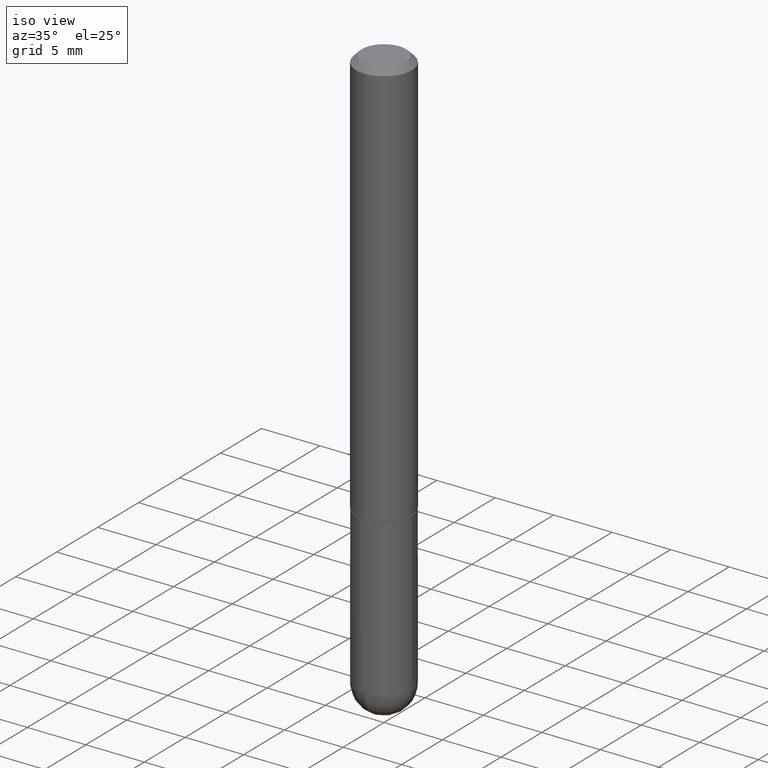
[diagram: clean part render]
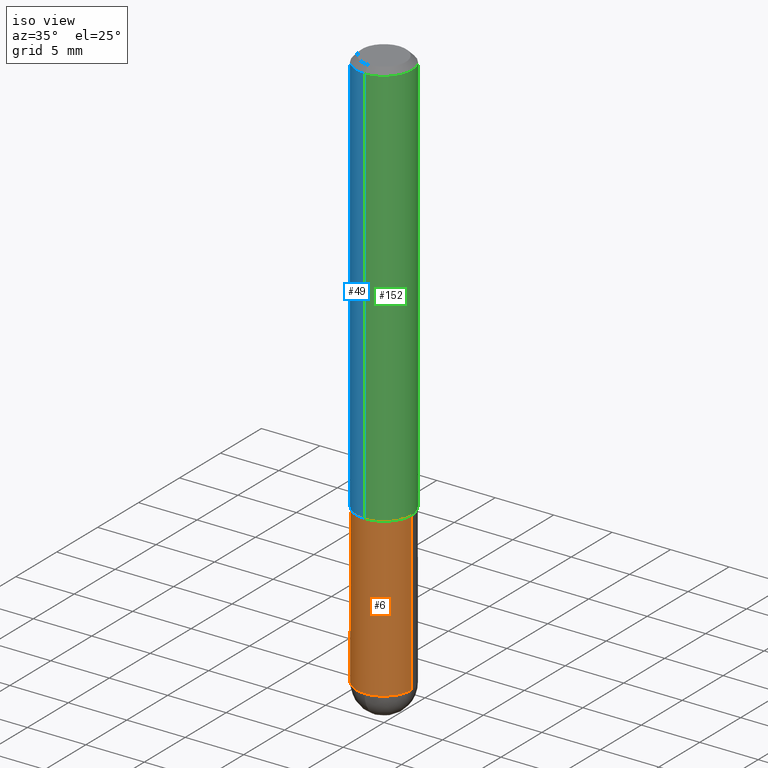
[diagram: same view with three faces highlighted in distinct colors, each labeled with its STEP entity id]
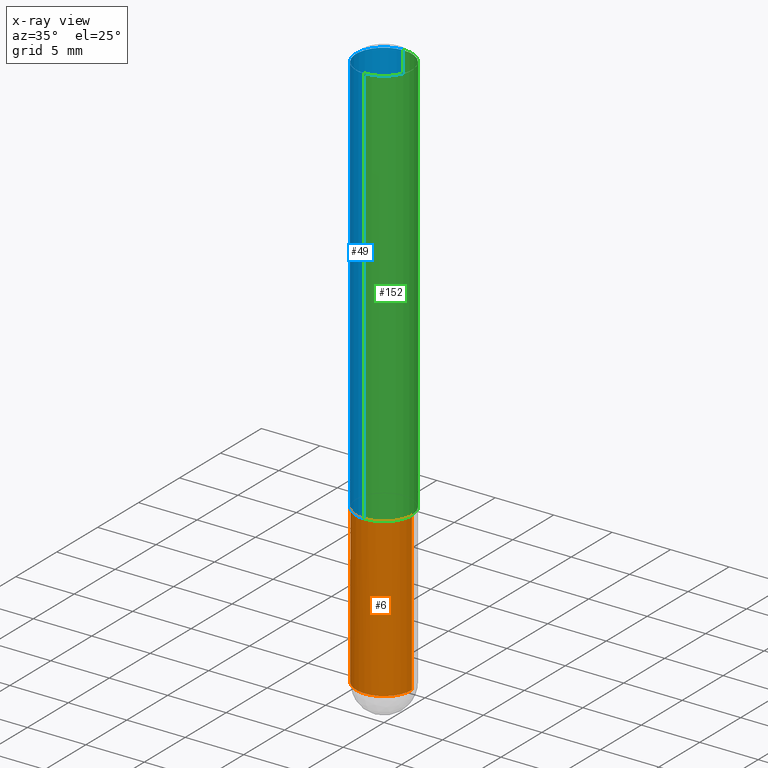
[diagram: x-ray of the same camera — body ghosted, the three highlighted faces saturated]
A machine part, iso view with three faces highlighted in distinct colors.
The next image is the same camera in x-ray (body ghosted, the three faces saturated) — at least one of them is partly hidden behind the body in this view.
Their STEP definitions:

[orange] entity #6 — the highlighted cylindrical surface (edge-blend (fillet) strip) has radius 2.3813 mm, axis along (-0, 0, 1).
#1 = VERTEX_POINT ( 'NONE', #338 ) ;
#2 = ORIENTED_EDGE ( 'NONE', *, *, #300, .F. ) ;
#6 = ADVANCED_FACE ( 'NONE', ( #319 ), #220, .T. ) ;
#13 = DIRECTION ( 'NONE',  ( -2.445468806185136597E-29, 3.491481338843145583E-15, 1.000000000000000000 ) ) ;
#22 = CARTESIAN_POINT ( 'NONE',  ( -6.661338147750496494E-16, -0.09375000000000702216, -1.906249999999999556 ) ) ;
#25 = VERTEX_POINT ( 'NONE', #22 ) ;
#39 = VECTOR ( 'NONE', #101, 39.37007874015748143 ) ;
#59 = CARTESIAN_POINT ( 'NONE',  ( 3.362519608504562260E-29, -4.800786840909324930E-15, -1.375000000000000000 ) ) ;
#63 = CARTESIAN_POINT ( 'NONE',  ( -0.09375000000000001388, -5.062077756764441261E-15, -1.375000000000000000 ) ) ;
#65 = CARTESIAN_POINT ( 'NONE',  ( 0.000000000000000000, 0.000000000000000000, 0.000000000000000000 ) ) ;
#67 = EDGE_CURVE ( 'NONE', #228, #163, #373, .T. ) ;
#83 = DIRECTION ( 'NONE',  ( 1.000000000000000000, -6.982962677686265922E-15, 4.876176775795935793E-29 ) ) ;
#84 = AXIS2_PLACEMENT_3D ( 'NONE', #59, #372, #211 ) ;
#87 = EDGE_LOOP ( 'NONE', ( #2, #351, #148, #108, #311 ) ) ;
#88 = CARTESIAN_POINT ( 'NONE',  ( 0.09375000000000001388, -6.546527510330875041E-16, 4.571415727308690506E-30 ) ) ;
#94 = CARTESIAN_POINT ( 'NONE',  ( 0.09375000000000001388, -6.382864322572621901E-15, -1.906250000000000000 ) ) ;
#98 = DIRECTION ( 'NONE',  ( 1.000000000000000000, -6.982962677686261189E-15, 0.000000000000000000 ) ) ;
#101 = DIRECTION ( 'NONE',  ( -2.445468806185136877E-29, 3.491481338843145188E-15, 1.000000000000000000 ) ) ;
#108 = ORIENTED_EDGE ( 'NONE', *, *, #114, .T. ) ;
#114 = EDGE_CURVE ( 'NONE', #245, #163, #404, .T. ) ;
#132 = AXIS2_PLACEMENT_3D ( 'NONE', #165, #362, #360 ) ;
#137 = AXIS2_PLACEMENT_3D ( 'NONE', #65, #354, #83 ) ;
#148 = ORIENTED_EDGE ( 'NONE', *, *, #385, .T. ) ;
#163 = VERTEX_POINT ( 'NONE', #276 ) ;
#165 = CARTESIAN_POINT ( 'NONE',  ( 4.661674911790416638E-29, -6.655636302169745441E-15, -1.906250000000000000 ) ) ;
#211 = DIRECTION ( 'NONE',  ( 1.000000000000000000, -6.982962677686261189E-15, 0.000000000000000000 ) ) ;
#213 = DIRECTION ( 'NONE',  ( -2.445468806185136877E-29, 3.491481338843145188E-15, 1.000000000000000000 ) ) ;
#220 = CYLINDRICAL_SURFACE ( 'NONE', #137, 0.09375000000000001388 ) ;
#228 = VERTEX_POINT ( 'NONE', #63 ) ;
#236 = CIRCLE ( 'NONE', #132, 0.09375000000000001388 ) ;
#245 = VERTEX_POINT ( 'NONE', #94 ) ;
#251 = EDGE_CURVE ( 'NONE', #1, #25, #236, .T. ) ;
#260 = CARTESIAN_POINT ( 'NONE',  ( -0.09375000000000001388, 6.661338147750940229E-16, -4.611501647113973995E-30 ) ) ;
#276 = CARTESIAN_POINT ( 'NONE',  ( 0.09375000000000001388, -5.455439591942412434E-15, -1.375000000000000000 ) ) ;
#300 = EDGE_CURVE ( 'NONE', #1, #228, #336, .T. ) ;
#311 = ORIENTED_EDGE ( 'NONE', *, *, #67, .F. ) ;
#319 = FACE_OUTER_BOUND ( 'NONE', #87, .T. ) ;
#330 = VECTOR ( 'NONE', #213, 39.37007874015748143 ) ;
#336 = LINE ( 'NONE', #260, #39 ) ;
#338 = CARTESIAN_POINT ( 'NONE',  ( -0.09375000000000001388, -5.062077756764441261E-15, -1.906250000000000000 ) ) ;
#346 = CIRCLE ( 'NONE', #353, 0.09375000000000001388 ) ;
#351 = ORIENTED_EDGE ( 'NONE', *, *, #251, .T. ) ;
#353 = AXIS2_PLACEMENT_3D ( 'NONE', #387, #13, #98 ) ;
#354 = DIRECTION ( 'NONE',  ( -2.445468806185136597E-29, 3.491481338843145583E-15, 1.000000000000000000 ) ) ;
#360 = DIRECTION ( 'NONE',  ( 1.000000000000000000, -6.982962677686261189E-15, 0.000000000000000000 ) ) ;
#362 = DIRECTION ( 'NONE',  ( -2.445468806185136597E-29, 3.491481338843145583E-15, 1.000000000000000000 ) ) ;
#372 = DIRECTION ( 'NONE',  ( -2.445468806185136597E-29, 3.491481338843145583E-15, 1.000000000000000000 ) ) ;
#373 = CIRCLE ( 'NONE', #84, 0.09375000000000001388 ) ;
#385 = EDGE_CURVE ( 'NONE', #25, #245, #346, .T. ) ;
#387 = CARTESIAN_POINT ( 'NONE',  ( 4.661674911790416638E-29, -6.655636302169745441E-15, -1.906250000000000000 ) ) ;
#404 = LINE ( 'NONE', #88, #330 ) ;

[blue] entity #49 — the highlighted cylindrical surface (edge-blend (fillet) strip) has radius 2.3813 mm, axis along (-0, 0, 1).
#4 = DIRECTION ( 'NONE',  ( -2.444797333483953649E-29, 3.492442925969092620E-15, 1.000000000000000000 ) ) ;
#11 = DIRECTION ( 'NONE',  ( -2.444797333483953649E-29, 3.492442925969092226E-15, 1.000000000000000000 ) ) ;
#16 = VERTEX_POINT ( 'NONE', #347 ) ;
#20 = DIRECTION ( 'NONE',  ( -6.982962677686265922E-15, -1.000000000000000000, 3.492442925969091437E-15 ) ) ;
#26 = LINE ( 'NONE', #412, #322 ) ;
#27 = CIRCLE ( 'NONE', #363, 0.09374999999999998612 ) ;
#36 = EDGE_CURVE ( 'NONE', #16, #217, #26, .T. ) ;
#49 = ADVANCED_FACE ( 'NONE', ( #301 ), #210, .T. ) ;
#55 = CARTESIAN_POINT ( 'NONE',  ( 0.000000000000000000, 0.000000000000000000, 0.000000000000000000 ) ) ;
#68 = CARTESIAN_POINT ( 'NONE',  ( 3.359151536206952494E-29, -4.798616580281532316E-15, -1.373999999999999888 ) ) ;
#76 = DIRECTION ( 'NONE',  ( -6.982962677686266711E-15, -1.000000000000000000, 2.913971193241874850E-15 ) ) ;
#79 = ORIENTED_EDGE ( 'NONE', *, *, #36, .T. ) ;
#102 = VERTEX_POINT ( 'NONE', #343 ) ;
#115 = DIRECTION ( 'NONE',  ( -6.982962677686266711E-15, -1.000000000000000000, 3.505871591869138487E-15 ) ) ;
#123 = VECTOR ( 'NONE', #4, 39.37007874015748143 ) ;
#141 = CARTESIAN_POINT ( 'NONE',  ( 6.546527510330878985E-16, 0.09374999999999991673, -0.02000000000000034736 ) ) ;
#177 = DIRECTION ( 'NONE',  ( -2.444797333483953649E-29, 3.492442925969092226E-15, 1.000000000000000000 ) ) ;
#178 = LINE ( 'NONE', #308, #123 ) ;
#185 = EDGE_LOOP ( 'NONE', ( #265, #277, #79, #317 ) ) ;
#187 = EDGE_CURVE ( 'NONE', #348, #217, #27, .T. ) ;
#207 = CARTESIAN_POINT ( 'NONE',  ( -6.431716872910804923E-16, -0.09375000000000005551, -0.01999999999999968817 ) ) ;
#210 = CYLINDRICAL_SURFACE ( 'NONE', #339, 0.09375000000000009714 ) ;
#217 = VERTEX_POINT ( 'NONE', #207 ) ;
#221 = EDGE_CURVE ( 'NONE', #102, #348, #178, .T. ) ;
#265 = ORIENTED_EDGE ( 'NONE', *, *, #221, .F. ) ;
#275 = AXIS2_PLACEMENT_3D ( 'NONE', #68, #11, #76 ) ;
#277 = ORIENTED_EDGE ( 'NONE', *, *, #315, .T. ) ;
#301 = FACE_OUTER_BOUND ( 'NONE', #185, .T. ) ;
#303 = DIRECTION ( 'NONE',  ( -2.444797333483953649E-29, 3.492442925969092620E-15, 1.000000000000000000 ) ) ;
#305 = CIRCLE ( 'NONE', #275, 0.09375000000000019429 ) ;
#308 = CARTESIAN_POINT ( 'NONE',  ( 6.661338147750944173E-16, 0.09375000000000009714, -3.274165243096026796E-16 ) ) ;
#315 = EDGE_CURVE ( 'NONE', #102, #16, #305, .T. ) ;
#317 = ORIENTED_EDGE ( 'NONE', *, *, #187, .F. ) ;
#322 = VECTOR ( 'NONE', #303, 39.37007874015748143 ) ;
#339 = AXIS2_PLACEMENT_3D ( 'NONE', #55, #374, #20 ) ;
#343 = CARTESIAN_POINT ( 'NONE',  ( 6.661338147751117722E-16, 0.09374999999999537870, -1.374000000000000110 ) ) ;
#345 = CARTESIAN_POINT ( 'NONE',  ( 4.889594666967911153E-31, -6.984885851938190023E-17, -0.02000000000000001776 ) ) ;
#347 = CARTESIAN_POINT ( 'NONE',  ( -6.546527510330552594E-16, -0.09375000000000499600, -1.373999999999999666 ) ) ;
#348 = VERTEX_POINT ( 'NONE', #141 ) ;
#363 = AXIS2_PLACEMENT_3D ( 'NONE', #345, #177, #115 ) ;
#374 = DIRECTION ( 'NONE',  ( -2.444797333483953649E-29, 3.492442925969092226E-15, 1.000000000000000000 ) ) ;
#412 = CARTESIAN_POINT ( 'NONE',  ( -6.546527510330880958E-16, -0.09375000000000009714, 3.274165243096026796E-16 ) ) ;

[green] entity #152 — the highlighted cylindrical surface (edge-blend (fillet) strip) has radius 2.3813 mm, axis along (-0, 0, 1).
#4 = DIRECTION ( 'NONE',  ( -2.444797333483953649E-29, 3.492442925969092620E-15, 1.000000000000000000 ) ) ;
#16 = VERTEX_POINT ( 'NONE', #347 ) ;
#19 = AXIS2_PLACEMENT_3D ( 'NONE', #215, #146, #242 ) ;
#26 = LINE ( 'NONE', #412, #322 ) ;
#36 = EDGE_CURVE ( 'NONE', #16, #217, #26, .T. ) ;
#37 = DIRECTION ( 'NONE',  ( -6.982962677686266711E-15, -1.000000000000000000, 3.505871591869138487E-15 ) ) ;
#51 = DIRECTION ( 'NONE',  ( -6.982962677686266711E-15, -1.000000000000000000, 2.913971193241874850E-15 ) ) ;
#91 = ORIENTED_EDGE ( 'NONE', *, *, #399, .F. ) ;
#102 = VERTEX_POINT ( 'NONE', #343 ) ;
#118 = CYLINDRICAL_SURFACE ( 'NONE', #19, 0.09375000000000009714 ) ;
#123 = VECTOR ( 'NONE', #4, 39.37007874015748143 ) ;
#126 = EDGE_CURVE ( 'NONE', #16, #102, #408, .T. ) ;
#141 = CARTESIAN_POINT ( 'NONE',  ( 6.546527510330878985E-16, 0.09374999999999991673, -0.02000000000000034736 ) ) ;
#146 = DIRECTION ( 'NONE',  ( -2.444797333483953649E-29, 3.492442925969092226E-15, 1.000000000000000000 ) ) ;
#152 = ADVANCED_FACE ( 'NONE', ( #238 ), #118, .T. ) ;
#153 = CARTESIAN_POINT ( 'NONE',  ( 3.359151536206952494E-29, -4.798616580281532316E-15, -1.373999999999999888 ) ) ;
#155 = ORIENTED_EDGE ( 'NONE', *, *, #126, .T. ) ;
#160 = CIRCLE ( 'NONE', #176, 0.09374999999999998612 ) ;
#176 = AXIS2_PLACEMENT_3D ( 'NONE', #258, #262, #37 ) ;
#178 = LINE ( 'NONE', #308, #123 ) ;
#180 = DIRECTION ( 'NONE',  ( -2.444797333483953649E-29, 3.492442925969092226E-15, 1.000000000000000000 ) ) ;
#207 = CARTESIAN_POINT ( 'NONE',  ( -6.431716872910804923E-16, -0.09375000000000005551, -0.01999999999999968817 ) ) ;
#214 = ORIENTED_EDGE ( 'NONE', *, *, #36, .F. ) ;
#215 = CARTESIAN_POINT ( 'NONE',  ( 0.000000000000000000, 0.000000000000000000, 0.000000000000000000 ) ) ;
#217 = VERTEX_POINT ( 'NONE', #207 ) ;
#221 = EDGE_CURVE ( 'NONE', #102, #348, #178, .T. ) ;
#235 = AXIS2_PLACEMENT_3D ( 'NONE', #153, #180, #51 ) ;
#238 = FACE_OUTER_BOUND ( 'NONE', #274, .T. ) ;
#242 = DIRECTION ( 'NONE',  ( -6.982962677686265922E-15, -1.000000000000000000, 3.492442925969091437E-15 ) ) ;
#258 = CARTESIAN_POINT ( 'NONE',  ( 4.889594666967911153E-31, -6.984885851938190023E-17, -0.02000000000000001776 ) ) ;
#262 = DIRECTION ( 'NONE',  ( -2.444797333483953649E-29, 3.492442925969092226E-15, 1.000000000000000000 ) ) ;
#274 = EDGE_LOOP ( 'NONE', ( #155, #381, #91, #214 ) ) ;
#303 = DIRECTION ( 'NONE',  ( -2.444797333483953649E-29, 3.492442925969092620E-15, 1.000000000000000000 ) ) ;
#308 = CARTESIAN_POINT ( 'NONE',  ( 6.661338147750944173E-16, 0.09375000000000009714, -3.274165243096026796E-16 ) ) ;
#322 = VECTOR ( 'NONE', #303, 39.37007874015748143 ) ;
#343 = CARTESIAN_POINT ( 'NONE',  ( 6.661338147751117722E-16, 0.09374999999999537870, -1.374000000000000110 ) ) ;
#347 = CARTESIAN_POINT ( 'NONE',  ( -6.546527510330552594E-16, -0.09375000000000499600, -1.373999999999999666 ) ) ;
#348 = VERTEX_POINT ( 'NONE', #141 ) ;
#381 = ORIENTED_EDGE ( 'NONE', *, *, #221, .T. ) ;
#399 = EDGE_CURVE ( 'NONE', #217, #348, #160, .T. ) ;
#408 = CIRCLE ( 'NONE', #235, 0.09375000000000019429 ) ;
#412 = CARTESIAN_POINT ( 'NONE',  ( -6.546527510330880958E-16, -0.09375000000000009714, 3.274165243096026796E-16 ) ) ;